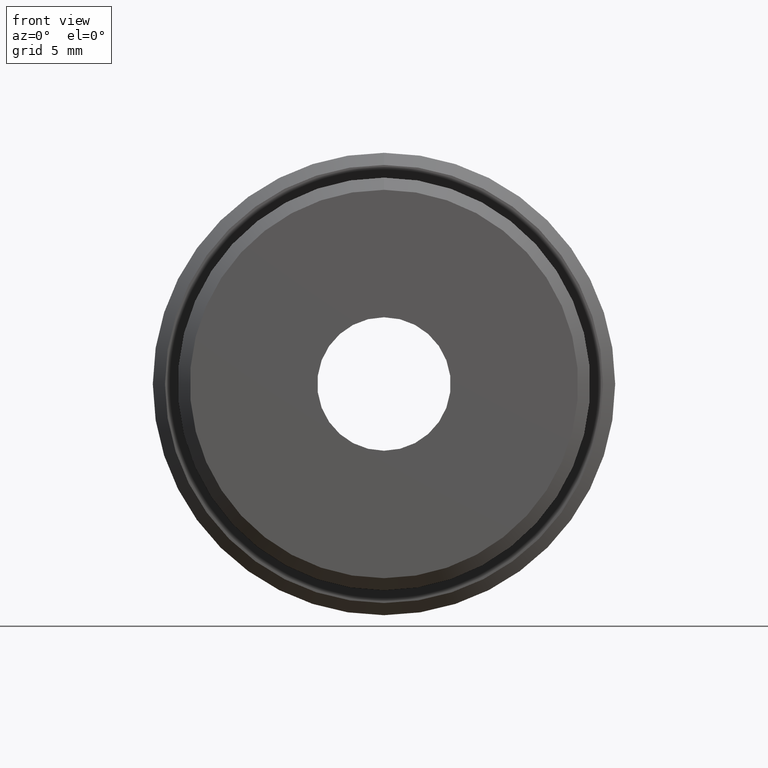
[diagram: clean part render]
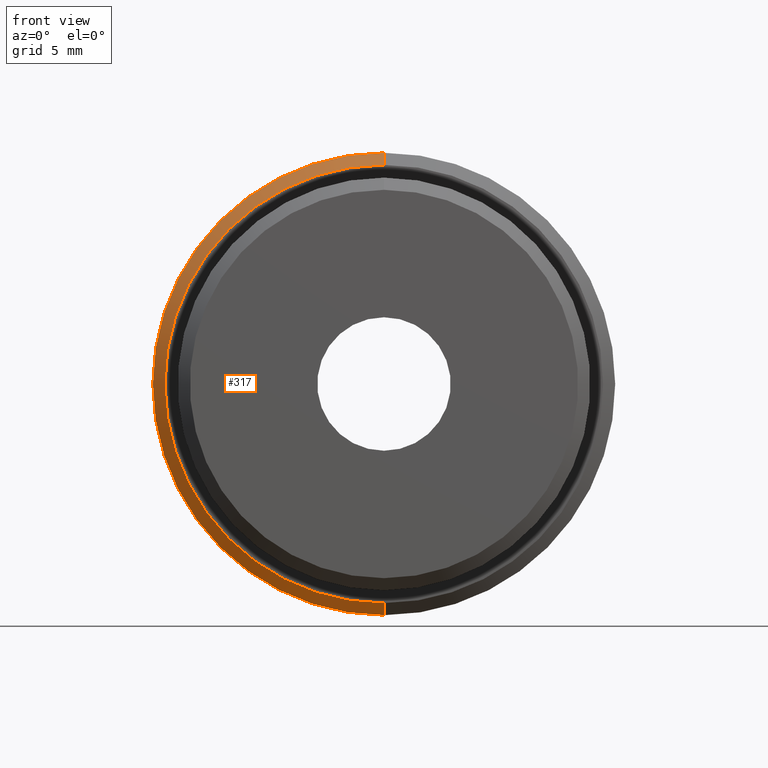
[diagram: same view with one face highlighted and labeled with its STEP entity id]
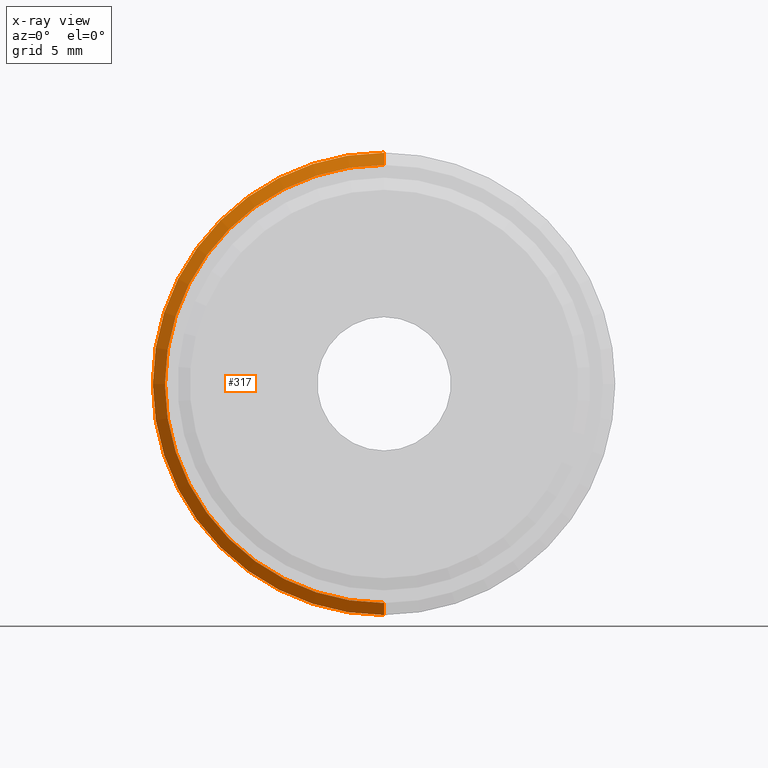
[diagram: x-ray of the same camera — body ghosted, the highlighted face saturated]
A machine part, front view. The second image highlights one B-rep face of the part: STEP entity #317.
The next image is the same camera in x-ray: the body ghosted, the highlighted face saturated — about 0% of this face is hidden behind the body in this view.
In plain terms, the highlighted conical surface has half-angle 45 deg.
Its self-contained STEP definition (entity closure, byte-faithful):
#9 = LINE ( 'NONE', #123, #753 ) ;
#40 = EDGE_CURVE ( 'NONE', #399, #149, #358, .T. ) ;
#94 = EDGE_CURVE ( 'NONE', #739, #399, #9, .T. ) ;
#123 = CARTESIAN_POINT ( 'NONE',  ( 0.0000000000000000000, 5.000000000000000900, 9.025000000000000400 ) ) ;
#126 = DIRECTION ( 'NONE',  ( 0.0000000000000000000, 0.0000000000000000000, -1.000000000000000000 ) ) ;
#142 = EDGE_CURVE ( 'NONE', #739, #1108, #743, .T. ) ;
#149 = VERTEX_POINT ( 'NONE', #344 ) ;
#154 = DIRECTION ( 'NONE',  ( 8.659560562354955000E-017, 0.7071067811865456900, -0.7071067811865493500 ) ) ;
#207 = DIRECTION ( 'NONE',  ( -0.0000000000000000000, -1.000000000000000000, -0.0000000000000000000 ) ) ;
#208 = CARTESIAN_POINT ( 'NONE',  ( 0.0000000000000000000, 5.000000000000000900, 0.0000000000000000000 ) ) ;
#301 = DIRECTION ( 'NONE',  ( 0.0000000000000000000, 0.7071067811865456900, 0.7071067811865493500 ) ) ;
#317 = ADVANCED_FACE ( 'NONE', ( #645 ), #679, .T. ) ;
#344 = CARTESIAN_POINT ( 'NONE',  ( 1.166476076187854000E-015, 5.499999999999999100, -9.525000000000000400 ) ) ;
#358 = CIRCLE ( 'NONE', #913, 9.525000000000000400 ) ;
#367 = CARTESIAN_POINT ( 'NONE',  ( 0.0000000000000000000, 5.499999999999999100, 0.0000000000000000000 ) ) ;
#399 = VERTEX_POINT ( 'NONE', #595 ) ;
#419 = ORIENTED_EDGE ( 'NONE', *, *, #142, .F. ) ;
#444 = EDGE_CURVE ( 'NONE', #1108, #149, #616, .T. ) ;
#455 = DIRECTION ( 'NONE',  ( -0.0000000000000000000, -1.000000000000000000, -0.0000000000000000000 ) ) ;
#458 = DIRECTION ( 'NONE',  ( 0.0000000000000000000, 0.0000000000000000000, -1.000000000000000000 ) ) ;
#496 = CARTESIAN_POINT ( 'NONE',  ( 1.105243736230486400E-015, 5.000000000000000900, -9.025000000000000400 ) ) ;
#572 = DIRECTION ( 'NONE',  ( 0.0000000000000000000, 1.000000000000000000, 0.0000000000000000000 ) ) ;
#590 = ORIENTED_EDGE ( 'NONE', *, *, #40, .T. ) ;
#595 = CARTESIAN_POINT ( 'NONE',  ( 0.0000000000000000000, 5.499999999999999100, 9.525000000000000400 ) ) ;
#598 = CARTESIAN_POINT ( 'NONE',  ( 1.135859906209170000E-015, 5.000000000000000900, -9.025000000000000400 ) ) ;
#599 = VECTOR ( 'NONE', #154, 1000.000000000000000 ) ;
#616 = LINE ( 'NONE', #496, #599 ) ;
#645 = FACE_OUTER_BOUND ( 'NONE', #662, .T. ) ;
#651 = CARTESIAN_POINT ( 'NONE',  ( 0.0000000000000000000, 5.000000000000000900, 0.0000000000000000000 ) ) ;
#653 = DIRECTION ( 'NONE',  ( 0.0000000000000000000, 0.0000000000000000000, 1.000000000000000000 ) ) ;
#662 = EDGE_LOOP ( 'NONE', ( #700, #419, #797, #590 ) ) ;
#679 = CONICAL_SURFACE ( 'NONE', #903, 9.025000000000000400, 0.7853981633974509400 ) ;
#700 = ORIENTED_EDGE ( 'NONE', *, *, #444, .F. ) ;
#739 = VERTEX_POINT ( 'NONE', #810 ) ;
#743 = CIRCLE ( 'NONE', #793, 9.025000000000000400 ) ;
#753 = VECTOR ( 'NONE', #301, 1000.000000000000000 ) ;
#793 = AXIS2_PLACEMENT_3D ( 'NONE', #208, #455, #458 ) ;
#797 = ORIENTED_EDGE ( 'NONE', *, *, #94, .T. ) ;
#810 = CARTESIAN_POINT ( 'NONE',  ( 0.0000000000000000000, 5.000000000000000900, 9.025000000000000400 ) ) ;
#903 = AXIS2_PLACEMENT_3D ( 'NONE', #651, #572, #653 ) ;
#913 = AXIS2_PLACEMENT_3D ( 'NONE', #367, #207, #126 ) ;
#1108 = VERTEX_POINT ( 'NONE', #598 ) ;